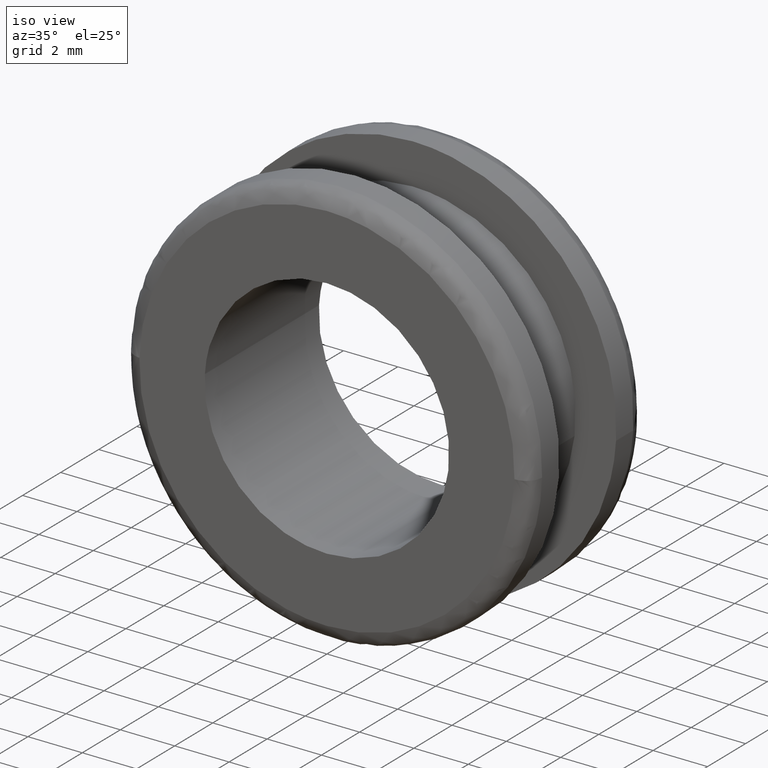
[diagram: clean part render]
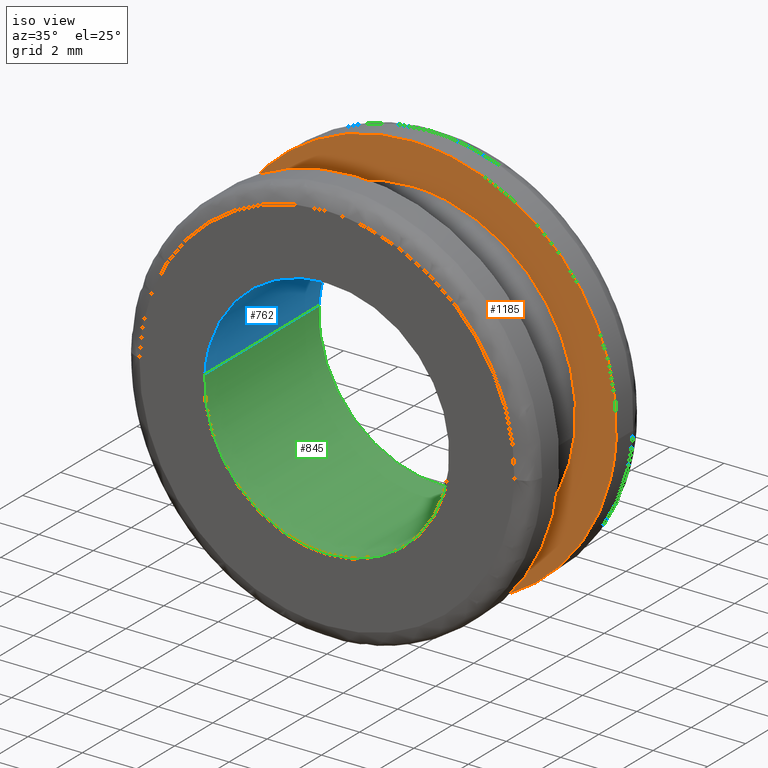
[diagram: same view with three faces highlighted in distinct colors, each labeled with its STEP entity id]
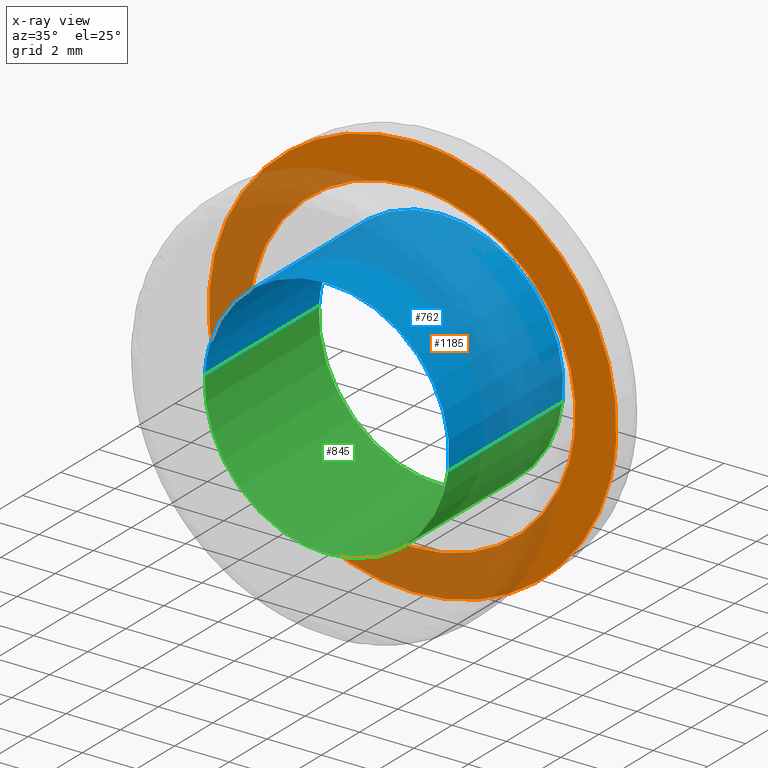
[diagram: x-ray of the same camera — body ghosted, the three highlighted faces saturated]
A machine part, iso view with three faces highlighted in distinct colors.
The next image is the same camera in x-ray (body ghosted, the three faces saturated) — at least one of them is partly hidden behind the body in this view.
Their STEP definitions:

[orange] entity #1185 — the highlighted face is a freeform B-spline surface patch.
#301=CARTESIAN_POINT('',(5.958057862993353,4.500000000000000,-0.708199478386858));
#302=VERTEX_POINT('',#301);
#308=CARTESIAN_POINT('',(0.0,4.500000000000000,6.0));
#309=VERTEX_POINT('',#308);
#310=CARTESIAN_POINT('',(5.958057862993353,4.500000000000000,-0.708199478386858));
#311=CARTESIAN_POINT('',(5.999999999999999,4.500000000000000,-0.355341721791815));
#312=CARTESIAN_POINT('',(6.0,4.500000000000000,-1.928755E-016));
#313=CARTESIAN_POINT('',(6.0,4.500000000000000,6.0));
#314=CARTESIAN_POINT('',(0.0,4.500000000000000,6.0));
#322=(BOUNDED_CURVE()B_SPLINE_CURVE(2,(#310,#311,#312,#313,#314),.UNSPECIFIED.,.F.,.U.)B_SPLINE_CURVE_WITH_KNOTS((3,2,3),(0.229562641710389,0.250000000000000,0.500000000000000),.UNSPECIFIED.)CURVE()GEOMETRIC_REPRESENTATION_ITEM()RATIONAL_B_SPLINE_CURVE((0.956027083856733,0.976056145386048,1.0,0.707106781186548,1.0))REPRESENTATION_ITEM(''));
#323=EDGE_CURVE('',#302,#309,#322,.T.);
#325=CARTESIAN_POINT('',(-5.988809020612538,4.500000000000000,0.366287475373750));
#326=VERTEX_POINT('',#325);
#327=CARTESIAN_POINT('',(0.0,4.500000000000000,6.0));
#328=CARTESIAN_POINT('',(-5.644239953454565,4.500000000000002,6.0));
#329=CARTESIAN_POINT('',(-5.988809020612538,4.500000000000000,0.366287475373750));
#337=(BOUNDED_CURVE()B_SPLINE_CURVE(2,(#327,#328,#329),.UNSPECIFIED.,.F.,.U.)B_SPLINE_CURVE_WITH_KNOTS((3,3),(0.500000000000000,0.739333070626239),.UNSPECIFIED.)CURVE()GEOMETRIC_REPRESENTATION_ITEM()RATIONAL_B_SPLINE_CURVE((1.0,0.719603866303094,0.976072273961436))REPRESENTATION_ITEM(''));
#338=EDGE_CURVE('',#309,#326,#337,.T.);
#412=CARTESIAN_POINT('',(0.0,4.500000000000000,-6.0));
#413=VERTEX_POINT('',#412);
#414=CARTESIAN_POINT('',(-5.988809020612538,4.500000000000000,0.366287475373750));
#415=CARTESIAN_POINT('',(-6.0,4.500000000000000,0.183314693600018));
#416=CARTESIAN_POINT('',(-6.0,4.500000000000000,-1.928755E-016));
#417=CARTESIAN_POINT('',(-6.0,4.500000000000000,-6.0));
#418=CARTESIAN_POINT('',(0.0,4.500000000000000,-6.0));
#426=(BOUNDED_CURVE()B_SPLINE_CURVE(2,(#414,#415,#416,#417,#418),.UNSPECIFIED.,.F.,.U.)B_SPLINE_CURVE_WITH_KNOTS((3,2,3),(0.739333070626239,0.750000000000000,1.0),.UNSPECIFIED.)CURVE()GEOMETRIC_REPRESENTATION_ITEM()RATIONAL_B_SPLINE_CURVE((0.976072273961436,0.987502914883454,1.0,0.707106781186548,1.0))REPRESENTATION_ITEM(''));
#427=EDGE_CURVE('',#326,#413,#426,.T.);
#429=CARTESIAN_POINT('',(0.0,4.500000000000000,-6.0));
#430=CARTESIAN_POINT('',(5.329052496598160,4.500000000000001,-6.000000000000001));
#431=CARTESIAN_POINT('',(5.958057862993353,4.500000000000000,-0.708199478386858));
#439=(BOUNDED_CURVE()B_SPLINE_CURVE(2,(#429,#430,#431),.UNSPECIFIED.,.F.,.U.)B_SPLINE_CURVE_WITH_KNOTS((3,3),(0.0,0.229562641710389),.UNSPECIFIED.)CURVE()GEOMETRIC_REPRESENTATION_ITEM()RATIONAL_B_SPLINE_CURVE((1.0,0.731050635800500,0.956027083856733))REPRESENTATION_ITEM(''));
#440=EDGE_CURVE('',#413,#302,#439,.T.);
#472=CARTESIAN_POINT('',(2.637130652825845,4.499999999999998,7.021078401492652));
#473=VERTEX_POINT('',#472);
#474=CARTESIAN_POINT('',(0.0,4.500000000000000,7.500000000000000));
#475=VERTEX_POINT('',#474);
#476=CARTESIAN_POINT('',(2.637130652825845,4.499999999999998,7.021078401492652));
#477=CARTESIAN_POINT('',(1.362053103036931,4.499999999999999,7.499999999999999));
#478=CARTESIAN_POINT('',(0.0,4.500000000000000,7.500000000000000));
#486=(BOUNDED_CURVE()B_SPLINE_CURVE(2,(#476,#477,#478),.UNSPECIFIED.,.F.,.U.)B_SPLINE_CURVE_WITH_KNOTS((3,3),(0.440284264374492,0.500000000000000),.UNSPECIFIED.)CURVE()GEOMETRIC_REPRESENTATION_ITEM()RATIONAL_B_SPLINE_CURVE((0.893499669027772,0.930038663915327,1.0))REPRESENTATION_ITEM(''));
#487=EDGE_CURVE('',#473,#475,#486,.T.);
#571=CARTESIAN_POINT('',(7.486011302712274,4.500000000000102,-0.457858903634632));
#572=VERTEX_POINT('',#571);
#578=CARTESIAN_POINT('',(0.0,4.500000000000000,-7.500000000000000));
#579=VERTEX_POINT('',#578);
#580=CARTESIAN_POINT('',(0.0,4.500000000000000,-7.500000000000000));
#581=CARTESIAN_POINT('',(7.055300357827547,4.500000000000001,-7.500000000000000));
#582=CARTESIAN_POINT('',(7.486011302712274,4.500000000000102,-0.457858903634633));
#590=(BOUNDED_CURVE()B_SPLINE_CURVE(2,(#580,#581,#582),.UNSPECIFIED.,.F.,.U.)B_SPLINE_CURVE_WITH_KNOTS((3,3),(0.0,0.239333080781329),.UNSPECIFIED.)CURVE()GEOMETRIC_REPRESENTATION_ITEM()RATIONAL_B_SPLINE_CURVE((1.0,0.719603854405665,0.976072295725749))REPRESENTATION_ITEM(''));
#591=EDGE_CURVE('',#579,#572,#590,.T.);
#593=CARTESIAN_POINT('',(0.0,4.500000000000000,7.500000000000000));
#594=CARTESIAN_POINT('',(-7.500000000000000,4.500000000000000,7.500000000000000));
#595=CARTESIAN_POINT('',(-7.500000000000000,4.500000000000000,-1.928755E-016));
#596=CARTESIAN_POINT('',(-7.500000000000000,4.500000000000000,-7.500000000000000));
#597=CARTESIAN_POINT('',(0.0,4.500000000000000,-7.500000000000000));
#605=(BOUNDED_CURVE()B_SPLINE_CURVE(2,(#593,#594,#595,#596,#597),.UNSPECIFIED.,.F.,.U.)B_SPLINE_CURVE_WITH_KNOTS((3,2,3),(0.500000000000000,0.750000000000000,1.0),.UNSPECIFIED.)CURVE()GEOMETRIC_REPRESENTATION_ITEM()RATIONAL_B_SPLINE_CURVE((1.0,0.707106781186547,1.0,0.707106781186547,1.0))REPRESENTATION_ITEM(''));
#606=EDGE_CURVE('',#475,#579,#605,.T.);
#625=CARTESIAN_POINT('',(7.486011302712274,4.500000000000102,-0.457858903634633));
#626=CARTESIAN_POINT('',(7.500000000000000,4.500000000000000,-0.229143146091092));
#627=CARTESIAN_POINT('',(7.500000000000000,4.500000000000000,-1.928755E-016));
#628=CARTESIAN_POINT('',(7.499999999999999,4.500000000000000,5.194575251579957));
#629=CARTESIAN_POINT('',(2.637130652825845,4.499999999999998,7.021078401492652));
#637=(BOUNDED_CURVE()B_SPLINE_CURVE(2,(#625,#626,#627,#628,#629),.UNSPECIFIED.,.F.,.U.)B_SPLINE_CURVE_WITH_KNOTS((3,2,3),(0.239333080781329,0.250000000000000,0.440284264374492),.UNSPECIFIED.)CURVE()GEOMETRIC_REPRESENTATION_ITEM()RATIONAL_B_SPLINE_CURVE((0.976072295725749,0.987502926780882,1.0,0.777068117271220,0.893499669027772))REPRESENTATION_ITEM(''));
#638=EDGE_CURVE('',#572,#473,#637,.T.);
#1168=CARTESIAN_POINT('',(-8.249184697654098,4.500000000000000,-8.249249970927089));
#1169=CARTESIAN_POINT('',(-8.249184697654098,4.500000000000000,8.249250373258443));
#1170=CARTESIAN_POINT('',(8.247878327753394,4.500000000000000,-8.249249970927089));
#1171=CARTESIAN_POINT('',(8.247878327753394,4.500000000000000,8.249250373258443));
#1172=B_SPLINE_SURFACE_WITH_KNOTS('',1,1,((#1168,#1170),(#1169,#1171)),.UNSPECIFIED.,.F.,.F.,.U.,(2,2),(2,2),(0.0,16.498500344185530),(0.0,16.497063025407488),.UNSPECIFIED.);
#1173=ORIENTED_EDGE('',*,*,#591,.T.);
#1174=ORIENTED_EDGE('',*,*,#638,.T.);
#1175=ORIENTED_EDGE('',*,*,#487,.T.);
#1176=ORIENTED_EDGE('',*,*,#606,.T.);
#1177=EDGE_LOOP('',(#1173,#1174,#1175,#1176));
#1178=FACE_OUTER_BOUND('',#1177,.T.);
#1179=ORIENTED_EDGE('',*,*,#338,.F.);
#1180=ORIENTED_EDGE('',*,*,#323,.F.);
#1181=ORIENTED_EDGE('',*,*,#440,.F.);
#1182=ORIENTED_EDGE('',*,*,#427,.F.);
#1183=EDGE_LOOP('',(#1179,#1180,#1181,#1182));
#1184=FACE_BOUND('',#1183,.T.);
#1185=ADVANCED_FACE('',(#1178,#1184),#1172,.F.);

[blue] entity #762 — the highlighted face is a freeform B-spline surface patch.
#660=CARTESIAN_POINT('',(4.468542868636499,6.150000000000001,-0.531154055955413));
#661=CARTESIAN_POINT('',(4.483744269518725,6.150000000000001,-0.403266278870900));
#662=CARTESIAN_POINT('',(4.491606592898400,6.150000000000001,-0.274718427906857));
#663=CARTESIAN_POINT('',(4.766325020805256,6.150000000000002,4.216888164991543));
#664=CARTESIAN_POINT('',(0.274718427906856,6.150000000000001,4.491606592898400));
#665=CARTESIAN_POINT('',(-4.216888164991543,6.150000000000002,4.766325020805256));
#666=CARTESIAN_POINT('',(-4.491606592898400,6.150000000000001,0.274718427906856));
#667=CARTESIAN_POINT('',(4.468542868636499,-0.153750000000001,-0.531154055955413));
#668=CARTESIAN_POINT('',(4.483744269518725,-0.153750000000001,-0.403266278870900));
#669=CARTESIAN_POINT('',(4.491606592898400,-0.153750000000001,-0.274718427906857));
#670=CARTESIAN_POINT('',(4.766325020805256,-0.153750000000001,4.216888164991543));
#671=CARTESIAN_POINT('',(0.274718427906856,-0.153750000000001,4.491606592898400));
#672=CARTESIAN_POINT('',(-4.216888164991543,-0.153750000000001,4.766325020805256));
#673=CARTESIAN_POINT('',(-4.491606592898400,-0.153750000000001,0.274718427906856));
#681=(BOUNDED_SURFACE()B_SPLINE_SURFACE(2,1,((#660,#667),(#661,#668),(#662,#669),(#663,#670),(#664,#671),(#665,#672),(#666,#673)),.UNSPECIFIED.,.F.,.F.,.U.)B_SPLINE_SURFACE_WITH_KNOTS((3,2,2,3),(2,2),(0.0,0.298233764908629,7.754077887624337,15.209922010340049),(0.0,6.303750000000004),.UNSPECIFIED.)GEOMETRIC_REPRESENTATION_ITEM()RATIONAL_B_SPLINE_SURFACE(((0.977505800795127,0.977505800795127),(0.988284271247462,0.988284271247462),(1.0,1.0),(0.707106781186548,0.707106781186548),(1.0,1.0),(0.707106781186548,0.707106781186548),(1.0,1.0)))REPRESENTATION_ITEM('')SURFACE());
#682=CARTESIAN_POINT('',(4.468543433658949,5.999999999999981,-0.531149302438178));
#683=VERTEX_POINT('',#682);
#684=CARTESIAN_POINT('',(0.0,6.0,4.500000000000000));
#685=VERTEX_POINT('',#684);
#686=CARTESIAN_POINT('',(4.468543433658949,5.999999999999981,-0.531149302438178));
#687=CARTESIAN_POINT('',(4.500000000000000,6.000000000000001,-0.266506136548569));
#688=CARTESIAN_POINT('',(4.500000000000000,6.0,-1.928755E-016));
#689=CARTESIAN_POINT('',(4.500000000000000,6.0,4.500000000000000));
#690=CARTESIAN_POINT('',(0.0,6.0,4.500000000000000));
#698=(BOUNDED_CURVE()B_SPLINE_CURVE(2,(#686,#687,#688,#689,#690),.UNSPECIFIED.,.F.,.U.)B_SPLINE_CURVE_WITH_KNOTS((3,2,3),(0.229562653296824,0.250000000000000,0.500000000000000),.UNSPECIFIED.)CURVE()GEOMETRIC_REPRESENTATION_ITEM()RATIONAL_B_SPLINE_CURVE((0.956027106566659,0.976056158960401,1.0,0.707106781186547,1.0))REPRESENTATION_ITEM(''));
#699=EDGE_CURVE('',#683,#685,#698,.T.);
#700=ORIENTED_EDGE('',*,*,#699,.F.);
#701=CARTESIAN_POINT('',(4.468543426855896,-1.023782E-015,-0.531149359672578));
#702=VERTEX_POINT('',#701);
#703=CARTESIAN_POINT('',(4.468543433658949,5.999999999999981,-0.531149302438178));
#704=CARTESIAN_POINT('',(4.468543426855896,-1.023782E-015,-0.531149359672578));
#705=QUASI_UNIFORM_CURVE('',1,(#703,#704),.UNSPECIFIED.,.F.,.U.);
#706=EDGE_CURVE('',#683,#702,#705,.T.);
#707=ORIENTED_EDGE('',*,*,#706,.T.);
#708=CARTESIAN_POINT('',(0.0,-8.266093E-016,4.500000000000000));
#709=VERTEX_POINT('',#708);
#710=CARTESIAN_POINT('',(4.468543426855896,-1.023782E-015,-0.531149359672578));
#711=CARTESIAN_POINT('',(4.500000000000001,-8.266093E-016,-0.266506165468297));
#712=CARTESIAN_POINT('',(4.500000000000000,-8.266093E-016,-1.928755E-016));
#713=CARTESIAN_POINT('',(4.500000000000000,-8.266093E-016,4.500000000000000));
#714=CARTESIAN_POINT('',(0.0,-8.266093E-016,4.500000000000000));
#722=(BOUNDED_CURVE()B_SPLINE_CURVE(2,(#710,#711,#712,#713,#714),.UNSPECIFIED.,.F.,.U.)B_SPLINE_CURVE_WITH_KNOTS((3,2,3),(0.229562651132181,0.250000000000000,0.500000000000000),.UNSPECIFIED.)CURVE()GEOMETRIC_REPRESENTATION_ITEM()RATIONAL_B_SPLINE_CURVE((0.956027102323862,0.976056156424364,1.0,0.707106781186547,1.0))REPRESENTATION_ITEM(''));
#723=EDGE_CURVE('',#702,#709,#722,.T.);
#724=ORIENTED_EDGE('',*,*,#723,.T.);
#725=CARTESIAN_POINT('',(-4.491606644914510,-1.356994E-015,0.274717577448348));
#726=VERTEX_POINT('',#725);
#727=CARTESIAN_POINT('',(0.0,-8.266093E-016,4.500000000000000));
#728=CARTESIAN_POINT('',(-4.233178907124497,-8.266093E-016,4.500000000000000));
#729=CARTESIAN_POINT('',(-4.491606644914510,-1.356994E-015,0.274717577448348));
#737=(BOUNDED_CURVE()B_SPLINE_CURVE(2,(#727,#728,#729),.UNSPECIFIED.,.F.,.U.)B_SPLINE_CURVE_WITH_KNOTS((3,3),(0.500000000000000,0.739333027583353),.UNSPECIFIED.)CURVE()GEOMETRIC_REPRESENTATION_ITEM()RATIONAL_B_SPLINE_CURVE((1.0,0.719603916730972,0.976072181712267))REPRESENTATION_ITEM(''));
#738=EDGE_CURVE('',#709,#726,#737,.T.);
#739=ORIENTED_EDGE('',*,*,#738,.T.);
#740=CARTESIAN_POINT('',(-4.491606645549719,6.0,0.274717567062701));
#741=VERTEX_POINT('',#740);
#742=CARTESIAN_POINT('',(-4.491606645549719,6.0,0.274717567062701));
#743=CARTESIAN_POINT('',(-4.491606644914510,-1.356994E-015,0.274717577448348));
#744=QUASI_UNIFORM_CURVE('',1,(#742,#743),.UNSPECIFIED.,.F.,.U.);
#745=EDGE_CURVE('',#741,#726,#744,.T.);
#746=ORIENTED_EDGE('',*,*,#745,.F.);
#747=CARTESIAN_POINT('',(0.0,6.0,4.500000000000000));
#748=CARTESIAN_POINT('',(-4.233178926737280,6.0,4.500000000000000));
#749=CARTESIAN_POINT('',(-4.491606645549719,6.0,0.274717567062700));
#757=(BOUNDED_CURVE()B_SPLINE_CURVE(2,(#747,#748,#749),.UNSPECIFIED.,.F.,.U.)B_SPLINE_CURVE_WITH_KNOTS((3,3),(0.500000000000000,0.739333028381290),.UNSPECIFIED.)CURVE()GEOMETRIC_REPRESENTATION_ITEM()RATIONAL_B_SPLINE_CURVE((1.0,0.719603915796130,0.976072183422399))REPRESENTATION_ITEM(''));
#758=EDGE_CURVE('',#685,#741,#757,.T.);
#759=ORIENTED_EDGE('',*,*,#758,.F.);
#760=EDGE_LOOP('',(#700,#707,#724,#739,#746,#759));
#761=FACE_OUTER_BOUND('',#760,.T.);
#762=ADVANCED_FACE('',(#761),#681,.F.);

[green] entity #845 — the highlighted face is a freeform B-spline surface patch.
#682=CARTESIAN_POINT('',(4.468543433658949,5.999999999999981,-0.531149302438178));
#683=VERTEX_POINT('',#682);
#701=CARTESIAN_POINT('',(4.468543426855896,-1.023782E-015,-0.531149359672578));
#702=VERTEX_POINT('',#701);
#703=CARTESIAN_POINT('',(4.468543433658949,5.999999999999981,-0.531149302438178));
#704=CARTESIAN_POINT('',(4.468543426855896,-1.023782E-015,-0.531149359672578));
#705=QUASI_UNIFORM_CURVE('',1,(#703,#704),.UNSPECIFIED.,.F.,.U.);
#706=EDGE_CURVE('',#683,#702,#705,.T.);
#725=CARTESIAN_POINT('',(-4.491606644914510,-1.356994E-015,0.274717577448348));
#726=VERTEX_POINT('',#725);
#740=CARTESIAN_POINT('',(-4.491606645549719,6.0,0.274717567062701));
#741=VERTEX_POINT('',#740);
#742=CARTESIAN_POINT('',(-4.491606645549719,6.0,0.274717567062701));
#743=CARTESIAN_POINT('',(-4.491606644914510,-1.356994E-015,0.274717577448348));
#744=QUASI_UNIFORM_CURVE('',1,(#742,#743),.UNSPECIFIED.,.F.,.U.);
#745=EDGE_CURVE('',#741,#726,#744,.T.);
#763=CARTESIAN_POINT('',(-4.491606592898400,6.150000000000001,0.274718427906856));
#764=CARTESIAN_POINT('',(-4.766325020805256,6.150000000000002,-4.216888164991543));
#765=CARTESIAN_POINT('',(-0.274718427906856,6.150000000000001,-4.491606592898400));
#766=CARTESIAN_POINT('',(3.966945708777753,6.150000000000001,-4.751037885296373));
#767=CARTESIAN_POINT('',(4.468542868636499,6.150000000000001,-0.531154055955413));
#768=CARTESIAN_POINT('',(-4.491606592898400,-0.153750000000001,0.274718427906856));
#769=CARTESIAN_POINT('',(-4.766325020805256,-0.153750000000001,-4.216888164991543));
#770=CARTESIAN_POINT('',(-0.274718427906856,-0.153750000000001,-4.491606592898400));
#771=CARTESIAN_POINT('',(3.966945708777753,-0.153750000000001,-4.751037885296373));
#772=CARTESIAN_POINT('',(4.468542868636499,-0.153750000000001,-0.531154055955413));
#780=(BOUNDED_SURFACE()B_SPLINE_SURFACE(2,1,((#763,#768),(#764,#769),(#765,#770),(#766,#771),(#767,#772)),.UNSPECIFIED.,.F.,.F.,.U.)B_SPLINE_SURFACE_WITH_KNOTS((3,2,3),(2,2),(0.0,7.455844122715709,14.613454480522790),(0.0,6.303750000000004),.UNSPECIFIED.)GEOMETRIC_REPRESENTATION_ITEM()RATIONAL_B_SPLINE_SURFACE(((1.0,1.0),(0.707106781186548,0.707106781186548),(1.0,1.0),(0.718822509939086,0.718822509939086),(0.977505800795127,0.977505800795127)))REPRESENTATION_ITEM('')SURFACE());
#781=CARTESIAN_POINT('',(0.0,6.0,-4.500000000000000));
#782=VERTEX_POINT('',#781);
#783=CARTESIAN_POINT('',(0.0,6.0,-4.500000000000000));
#784=CARTESIAN_POINT('',(3.996789648387213,6.0,-4.500000000000000));
#785=CARTESIAN_POINT('',(4.468543433658949,5.999999999999981,-0.531149302438178));
#793=(BOUNDED_CURVE()B_SPLINE_CURVE(2,(#783,#784,#785),.UNSPECIFIED.,.F.,.U.)B_SPLINE_CURVE_WITH_KNOTS((3,3),(0.0,0.229562653296824),.UNSPECIFIED.)CURVE()GEOMETRIC_REPRESENTATION_ITEM()RATIONAL_B_SPLINE_CURVE((1.0,0.731050622226146,0.956027106566659))REPRESENTATION_ITEM(''));
#794=EDGE_CURVE('',#782,#683,#793,.T.);
#795=ORIENTED_EDGE('',*,*,#794,.F.);
#796=CARTESIAN_POINT('',(-4.491606645549719,6.000000000000001,0.274717567062700));
#797=CARTESIAN_POINT('',(-4.500000000000001,6.000000000000001,0.137486571585786));
#798=CARTESIAN_POINT('',(-4.500000000000000,6.0,-1.928755E-016));
#799=CARTESIAN_POINT('',(-4.500000000000000,6.0,-4.500000000000000));
#800=CARTESIAN_POINT('',(0.0,6.0,-4.500000000000000));
#808=(BOUNDED_CURVE()B_SPLINE_CURVE(2,(#796,#797,#798,#799,#800),.UNSPECIFIED.,.F.,.U.)B_SPLINE_CURVE_WITH_KNOTS((3,2,3),(0.739333028381289,0.750000000000000,1.0),.UNSPECIFIED.)CURVE()GEOMETRIC_REPRESENTATION_ITEM()RATIONAL_B_SPLINE_CURVE((0.976072183422397,0.987502865390416,1.0,0.707106781186547,1.0))REPRESENTATION_ITEM(''));
#809=EDGE_CURVE('',#741,#782,#808,.T.);
#810=ORIENTED_EDGE('',*,*,#809,.F.);
#811=ORIENTED_EDGE('',*,*,#745,.T.);
#812=CARTESIAN_POINT('',(0.0,-8.266093E-016,-4.500000000000000));
#813=VERTEX_POINT('',#812);
#814=CARTESIAN_POINT('',(-4.491606644914510,-1.356994E-015,0.274717577448348));
#815=CARTESIAN_POINT('',(-4.500000000000000,-8.266093E-016,0.137486582000554));
#816=CARTESIAN_POINT('',(-4.500000000000000,-8.266093E-016,-1.928755E-016));
#817=CARTESIAN_POINT('',(-4.500000000000000,-8.266093E-016,-4.500000000000000));
#818=CARTESIAN_POINT('',(0.0,-8.266093E-016,-4.500000000000000));
#826=(BOUNDED_CURVE()B_SPLINE_CURVE(2,(#814,#815,#816,#817,#818),.UNSPECIFIED.,.F.,.U.)B_SPLINE_CURVE_WITH_KNOTS((3,2,3),(0.739333027583352,0.750000000000000,1.0),.UNSPECIFIED.)CURVE()GEOMETRIC_REPRESENTATION_ITEM()RATIONAL_B_SPLINE_CURVE((0.976072181712265,0.987502864455574,1.0,0.707106781186547,1.0))REPRESENTATION_ITEM(''));
#827=EDGE_CURVE('',#726,#813,#826,.T.);
#828=ORIENTED_EDGE('',*,*,#827,.T.);
#829=CARTESIAN_POINT('',(0.0,-8.266093E-016,-4.500000000000000));
#830=CARTESIAN_POINT('',(3.996789596834808,-8.266093E-016,-4.500000000000000));
#831=CARTESIAN_POINT('',(4.468543426855896,-1.023782E-015,-0.531149359672578));
#839=(BOUNDED_CURVE()B_SPLINE_CURVE(2,(#829,#830,#831),.UNSPECIFIED.,.F.,.U.)B_SPLINE_CURVE_WITH_KNOTS((3,3),(0.0,0.229562651132181),.UNSPECIFIED.)CURVE()GEOMETRIC_REPRESENTATION_ITEM()RATIONAL_B_SPLINE_CURVE((1.0,0.731050624762184,0.956027102323862))REPRESENTATION_ITEM(''));
#840=EDGE_CURVE('',#813,#702,#839,.T.);
#841=ORIENTED_EDGE('',*,*,#840,.T.);
#842=ORIENTED_EDGE('',*,*,#706,.F.);
#843=EDGE_LOOP('',(#795,#810,#811,#828,#841,#842));
#844=FACE_OUTER_BOUND('',#843,.T.);
#845=ADVANCED_FACE('',(#844),#780,.F.);